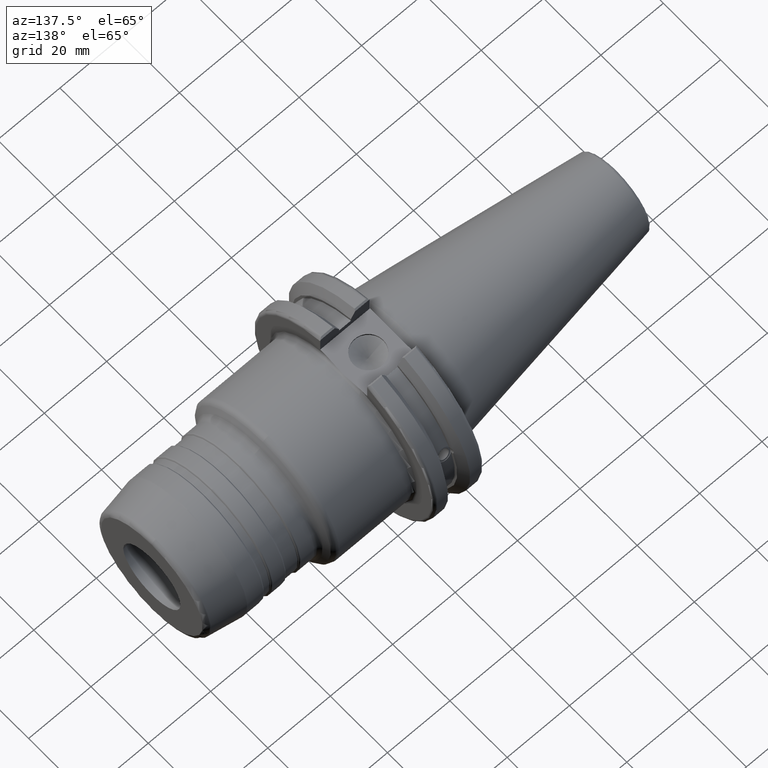
[diagram: clean part render]
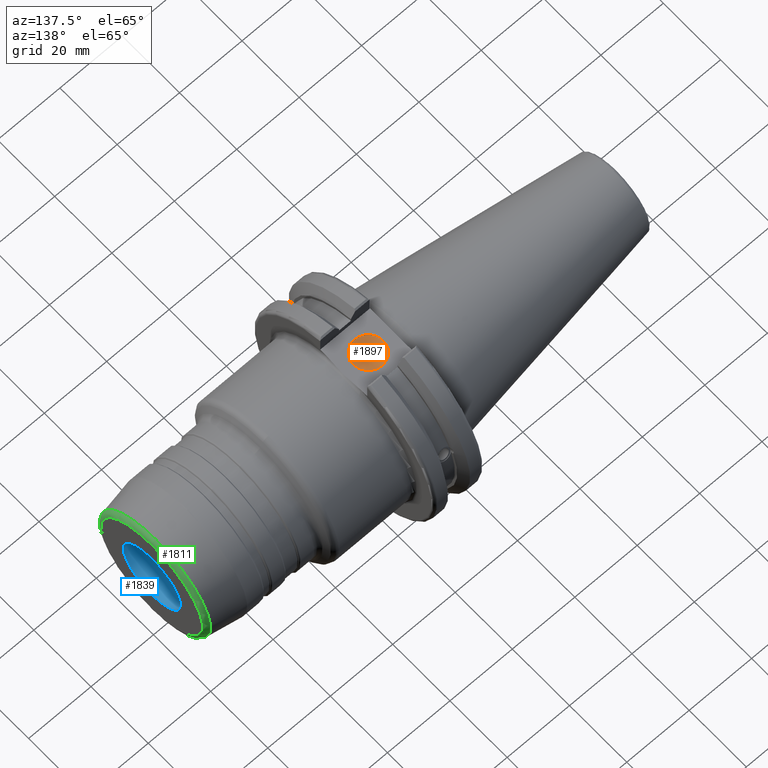
[diagram: same view with three faces highlighted in distinct colors, each labeled with its STEP entity id]
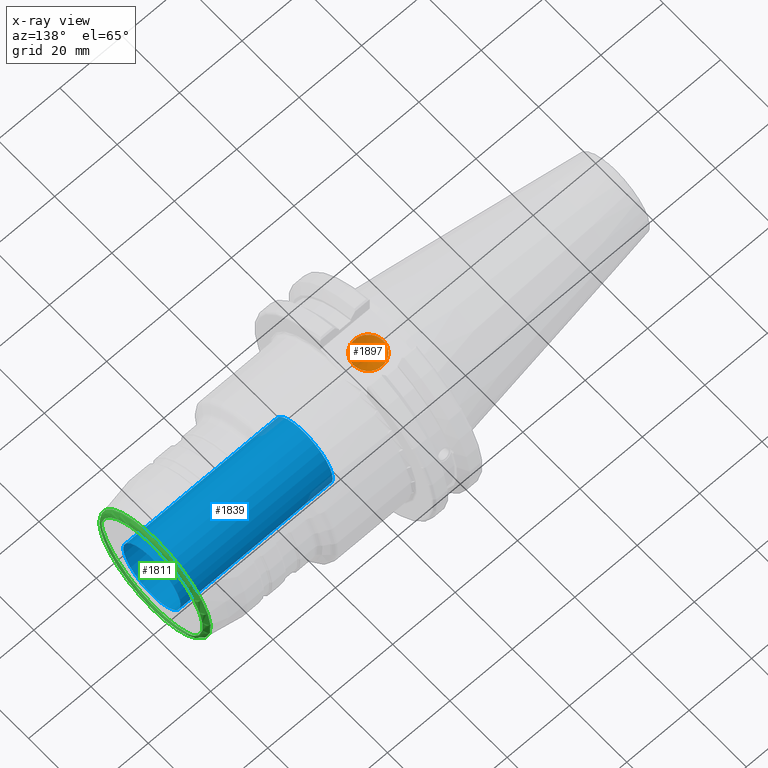
[diagram: x-ray of the same camera — body ghosted, the three highlighted faces saturated]
A machine part, auxiliary view with three faces highlighted in distinct colors.
The next image is the same camera in x-ray (body ghosted, the three faces saturated) — at least one of them is partly hidden behind the body in this view.
Their STEP definitions:

[orange] entity #1897 — the highlighted conical surface has half-angle 59 deg.
#164=CONICAL_SURFACE('',#2161,2.38125,1.02974425867665);
#258=FACE_OUTER_BOUND('',#377,.T.);
#377=EDGE_LOOP('',(#1696,#1697,#1698));
#485=LINE('',#3691,#579);
#579=VECTOR('',#2732,2.38125);
#701=CIRCLE('',#2162,4.7625);
#898=VERTEX_POINT('',#3688);
#899=VERTEX_POINT('',#3690);
#1177=EDGE_CURVE('',#898,#898,#701,.T.);
#1178=EDGE_CURVE('',#898,#899,#485,.T.);
#1696=ORIENTED_EDGE('',*,*,#1177,.T.);
#1697=ORIENTED_EDGE('',*,*,#1178,.T.);
#1698=ORIENTED_EDGE('',*,*,#1178,.F.);
#1897=ADVANCED_FACE('',(#258),#164,.F.);
#2161=AXIS2_PLACEMENT_3D('',#3687,#2728,#2729);
#2162=AXIS2_PLACEMENT_3D('',#3689,#2730,#2731);
#2728=DIRECTION('center_axis',(0.,0.,1.));
#2729=DIRECTION('ref_axis',(1.,0.,0.));
#2730=DIRECTION('center_axis',(0.,0.,1.));
#2731=DIRECTION('ref_axis',(1.,0.,0.));
#2732=DIRECTION('',(0.857167300702112,1.04972719113862E-16,-0.515038074910054));
#3687=CARTESIAN_POINT('Origin',(11.1341,0.,23.1692006509406));
#3688=CARTESIAN_POINT('',(6.3716,-5.83238038093927E-16,24.6));
#3689=CARTESIAN_POINT('Origin',(11.1341,0.,24.6));
#3690=CARTESIAN_POINT('',(11.1341,0.,21.7384013018812));
#3691=CARTESIAN_POINT('',(8.75285,-2.91619019046964E-16,23.1692006509406));

[blue] entity #1839 — the highlighted cylindrical surface (bore or boss wall) has radius 10 mm, axis along (1, 0, 0).
#200=FACE_OUTER_BOUND('',#309,.T.);
#309=EDGE_LOOP('',(#1373,#1374,#1375,#1376));
#416=LINE('',#3103,#510);
#510=VECTOR('',#2417,10.);
#595=CIRCLE('',#1954,10.);
#655=CIRCLE('',#2040,10.);
#726=VERTEX_POINT('',#2897);
#781=VERTEX_POINT('',#3102);
#922=EDGE_CURVE('',#726,#726,#595,.T.);
#1002=EDGE_CURVE('',#726,#781,#416,.T.);
#1003=EDGE_CURVE('',#781,#781,#655,.T.);
#1373=ORIENTED_EDGE('',*,*,#922,.T.);
#1374=ORIENTED_EDGE('',*,*,#1002,.T.);
#1375=ORIENTED_EDGE('',*,*,#1003,.F.);
#1376=ORIENTED_EDGE('',*,*,#1002,.F.);
#1782=CYLINDRICAL_SURFACE('',#2039,10.);
#1839=ADVANCED_FACE('',(#200),#1782,.F.);
#1954=AXIS2_PLACEMENT_3D('',#2898,#2229,#2230);
#2039=AXIS2_PLACEMENT_3D('',#3101,#2415,#2416);
#2040=AXIS2_PLACEMENT_3D('',#3104,#2418,#2419);
#2229=DIRECTION('center_axis',(1.,0.,0.));
#2230=DIRECTION('ref_axis',(0.,0.,-1.));
#2415=DIRECTION('center_axis',(1.,0.,0.));
#2416=DIRECTION('ref_axis',(0.,1.,0.));
#2417=DIRECTION('',(-1.,0.,0.));
#2418=DIRECTION('center_axis',(1.,0.,0.));
#2419=DIRECTION('ref_axis',(0.,0.,-1.));
#2897=CARTESIAN_POINT('',(80.5,-10.,-1.22464679914735E-15));
#2898=CARTESIAN_POINT('Origin',(80.5,0.,0.));
#3101=CARTESIAN_POINT('Origin',(56.1,0.,0.));
#3102=CARTESIAN_POINT('',(31.7,-10.,-1.22464679914735E-15));
#3103=CARTESIAN_POINT('',(56.1,-10.,-1.22464679914735E-15));
#3104=CARTESIAN_POINT('Origin',(31.7,0.,0.));

[green] entity #1811 — the highlighted toroidal blend (fillet) surface has major radius 17.7414 mm and minor (blend) radius 1.5 mm.
#83=TOROIDAL_SURFACE('',#1945,17.7413505532341,1.5);
#172=FACE_OUTER_BOUND('',#280,.T.);
#280=EDGE_LOOP('',(#1211,#1212,#1213,#1214,#1215));
#589=CIRCLE('',#1946,17.7413505532341);
#590=CIRCLE('',#1947,1.5);
#591=CIRCLE('',#1948,19.2185621827524);
#592=CIRCLE('',#1949,19.2185621827524);
#721=VERTEX_POINT('',#2883);
#722=VERTEX_POINT('',#2885);
#723=VERTEX_POINT('',#2887);
#915=EDGE_CURVE('',#721,#721,#589,.T.);
#916=EDGE_CURVE('',#721,#722,#590,.T.);
#917=EDGE_CURVE('',#722,#723,#591,.T.);
#918=EDGE_CURVE('',#723,#722,#592,.T.);
#1211=ORIENTED_EDGE('',*,*,#915,.T.);
#1212=ORIENTED_EDGE('',*,*,#916,.T.);
#1213=ORIENTED_EDGE('',*,*,#917,.T.);
#1214=ORIENTED_EDGE('',*,*,#918,.T.);
#1215=ORIENTED_EDGE('',*,*,#916,.F.);
#1811=ADVANCED_FACE('',(#172),#83,.T.);
#1945=AXIS2_PLACEMENT_3D('',#2882,#2210,#2211);
#1946=AXIS2_PLACEMENT_3D('',#2884,#2212,#2213);
#1947=AXIS2_PLACEMENT_3D('',#2886,#2214,#2215);
#1948=AXIS2_PLACEMENT_3D('',#2888,#2216,#2217);
#1949=AXIS2_PLACEMENT_3D('',#2889,#2218,#2219);
#2210=DIRECTION('center_axis',(1.,0.,0.));
#2211=DIRECTION('ref_axis',(0.,0.,-1.));
#2212=DIRECTION('center_axis',(-1.,0.,0.));
#2213=DIRECTION('ref_axis',(0.,-1.,1.83697019872103E-16));
#2214=DIRECTION('center_axis',(0.,-1.,-1.22464679914735E-16));
#2215=DIRECTION('ref_axis',(0.,-1.22464679914735E-16,1.));
#2216=DIRECTION('center_axis',(1.,0.,0.));
#2217=DIRECTION('ref_axis',(0.,-1.,3.06161699786838E-17));
#2218=DIRECTION('center_axis',(1.,0.,0.));
#2219=DIRECTION('ref_axis',(0.,-1.,3.06161699786838E-17));
#2882=CARTESIAN_POINT('Origin',(79.,0.,0.));
#2883=CARTESIAN_POINT('',(80.5,-2.17268881675692E-15,17.7413505532341));
#2884=CARTESIAN_POINT('Origin',(80.5,0.,0.));
#2885=CARTESIAN_POINT('',(79.2604722665004,-2.35359506613221E-15,19.2185621827524));
#2886=CARTESIAN_POINT('Origin',(79.,-2.17268881675692E-15,17.7413505532341));
#2887=CARTESIAN_POINT('',(79.2604722665004,-19.2185621827524,-2.35359506613221E-15));
#2888=CARTESIAN_POINT('Origin',(79.2604722665004,0.,-2.94199383266526E-15));
#2889=CARTESIAN_POINT('Origin',(79.2604722665004,0.,-2.94199383266526E-15));